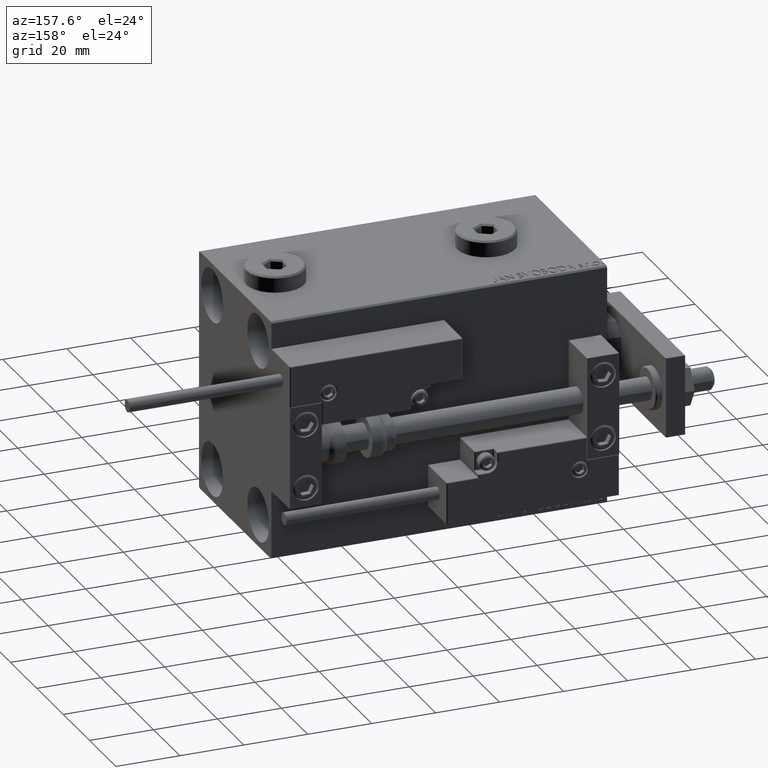
[diagram: clean part render]
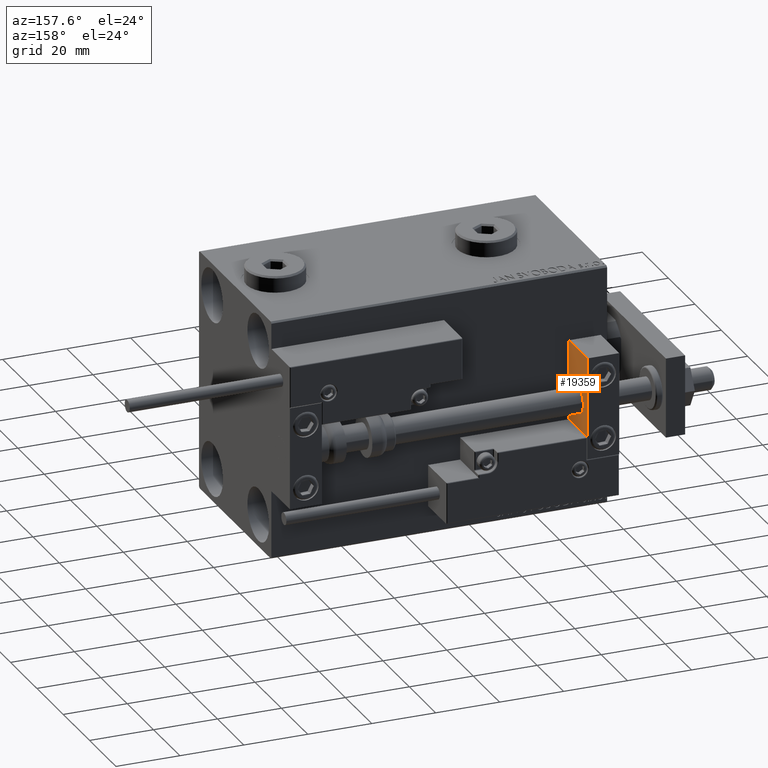
[diagram: same view with one face highlighted and labeled with its STEP entity id]
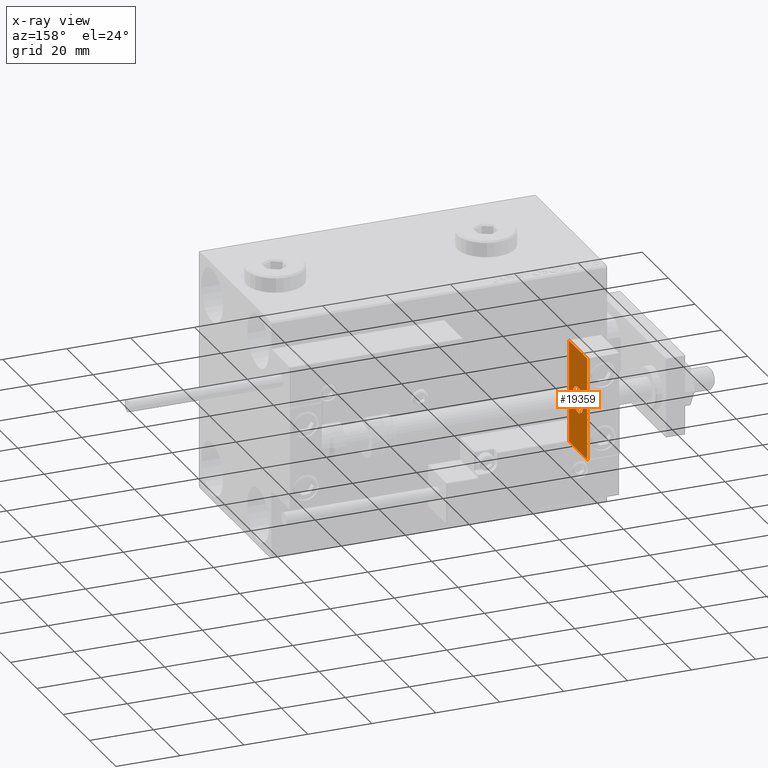
[diagram: x-ray of the same camera — body ghosted, the highlighted face saturated]
A machine part, auxiliary view. The second image highlights one B-rep face of the part: STEP entity #19359.
The next image is the same camera in x-ray: the body ghosted, the highlighted face saturated — about 0% of this face is hidden behind the body in this view.
In plain terms, the highlighted planar face has unit normal (1, 0, -0).
Its self-contained STEP definition (entity closure, byte-faithful):
#1482 = EDGE_LOOP ( 'NONE', ( #19456, #39591, #12392, #4337 ) ) ;
#2294 = EDGE_LOOP ( 'NONE', ( #15353, #41331 ) ) ;
#2794 = CARTESIAN_POINT ( 'NONE',  ( 0.000000000000000000, 7.000000000000000000, -16.00000000000000711 ) ) ;
#4337 = ORIENTED_EDGE ( 'NONE', *, *, #9073, .T. ) ;
#4496 = FACE_OUTER_BOUND ( 'NONE', #1482, .T. ) ;
#5113 = LINE ( 'NONE', #5624, #12181 ) ;
#5523 = CARTESIAN_POINT ( 'NONE',  ( 0.000000000000000000, 0.000000000000000000, 0.000000000000000000 ) ) ;
#5624 = CARTESIAN_POINT ( 'NONE',  ( 0.000000000000000000, 7.000000000000000000, 15.99999999999999289 ) ) ;
#5843 = VECTOR ( 'NONE', #8872, 1000.000000000000000 ) ;
#8091 = AXIS2_PLACEMENT_3D ( 'NONE', #21512, #12915, #34476 ) ;
#8607 = AXIS2_PLACEMENT_3D ( 'NONE', #12932, #28839, #41608 ) ;
#8872 = DIRECTION ( 'NONE',  ( 0.000000000000000000, 0.000000000000000000, -1.000000000000000000 ) ) ;
#8960 = LINE ( 'NONE', #17017, #11264 ) ;
#9073 = EDGE_CURVE ( 'NONE', #34351, #26960, #8960, .T. ) ;
#9176 = DIRECTION ( 'NONE',  ( -0.000000000000000000, 0.000000000000000000, 1.000000000000000000 ) ) ;
#10577 = CIRCLE ( 'NONE', #8091, 4.000000000000000000 ) ;
#10683 = VERTEX_POINT ( 'NONE', #37275 ) ;
#11264 = VECTOR ( 'NONE', #44419, 1000.000000000000000 ) ;
#11939 = VERTEX_POINT ( 'NONE', #28379 ) ;
#12181 = VECTOR ( 'NONE', #24937, 1000.000000000000000 ) ;
#12392 = ORIENTED_EDGE ( 'NONE', *, *, #35281, .T. ) ;
#12915 = DIRECTION ( 'NONE',  ( -1.000000000000000000, -0.000000000000000000, -0.000000000000000000 ) ) ;
#12932 = CARTESIAN_POINT ( 'NONE',  ( 0.000000000000000000, 0.000000000000000000, 0.000000000000000000 ) ) ;
#15353 = ORIENTED_EDGE ( 'NONE', *, *, #28116, .F. ) ;
#15692 = AXIS2_PLACEMENT_3D ( 'NONE', #5523, #21429, #9176 ) ;
#15693 = CARTESIAN_POINT ( 'NONE',  ( 0.000000000000000000, 7.000000000000000000, 15.99999999999999289 ) ) ;
#16981 = FACE_BOUND ( 'NONE', #2294, .T. ) ;
#17017 = CARTESIAN_POINT ( 'NONE',  ( 0.000000000000000000, 7.000000000000000000, -16.00000000000000711 ) ) ;
#17464 = CARTESIAN_POINT ( 'NONE',  ( 0.000000000000000000, -7.000000000000000000, 15.99999999999999289 ) ) ;
#19359 = ADVANCED_FACE ( 'NONE', ( #16981, #4496 ), #28743, .T. ) ;
#19456 = ORIENTED_EDGE ( 'NONE', *, *, #22849, .F. ) ;
#21429 = DIRECTION ( 'NONE',  ( -1.000000000000000000, 0.000000000000000000, -0.000000000000000000 ) ) ;
#21512 = CARTESIAN_POINT ( 'NONE',  ( 0.000000000000000000, 0.000000000000000000, 0.000000000000000000 ) ) ;
#22849 = EDGE_CURVE ( 'NONE', #10683, #26960, #49009, .T. ) ;
#23782 = LINE ( 'NONE', #15693, #25062 ) ;
#24937 = DIRECTION ( 'NONE',  ( 0.000000000000000000, 0.000000000000000000, -1.000000000000000000 ) ) ;
#25062 = VECTOR ( 'NONE', #48518, 1000.000000000000000 ) ;
#26945 = CARTESIAN_POINT ( 'NONE',  ( 0.000000000000000000, 0.000000000000000000, 4.000000000000000000 ) ) ;
#26960 = VERTEX_POINT ( 'NONE', #40630 ) ;
#28116 = EDGE_CURVE ( 'NONE', #51225, #44058, #36830, .T. ) ;
#28379 = CARTESIAN_POINT ( 'NONE',  ( 0.000000000000000000, 7.000000000000000000, 15.99999999999999289 ) ) ;
#28743 = PLANE ( 'NONE',  #15692 ) ;
#28839 = DIRECTION ( 'NONE',  ( -1.000000000000000000, -0.000000000000000000, -0.000000000000000000 ) ) ;
#34351 = VERTEX_POINT ( 'NONE', #2794 ) ;
#34476 = DIRECTION ( 'NONE',  ( 0.000000000000000000, 0.000000000000000000, 1.000000000000000000 ) ) ;
#35281 = EDGE_CURVE ( 'NONE', #11939, #34351, #5113, .T. ) ;
#36830 = CIRCLE ( 'NONE', #8607, 4.000000000000000000 ) ;
#37275 = CARTESIAN_POINT ( 'NONE',  ( 0.000000000000000000, -7.000000000000000000, 15.99999999999999289 ) ) ;
#39591 = ORIENTED_EDGE ( 'NONE', *, *, #48489, .F. ) ;
#40630 = CARTESIAN_POINT ( 'NONE',  ( 0.000000000000000000, -7.000000000000000000, -16.00000000000000711 ) ) ;
#40710 = CARTESIAN_POINT ( 'NONE',  ( 0.000000000000000000, 4.898587196589412829E-16, -4.000000000000000000 ) ) ;
#40753 = EDGE_CURVE ( 'NONE', #44058, #51225, #10577, .T. ) ;
#41331 = ORIENTED_EDGE ( 'NONE', *, *, #40753, .F. ) ;
#41608 = DIRECTION ( 'NONE',  ( 0.000000000000000000, 0.000000000000000000, 1.000000000000000000 ) ) ;
#44058 = VERTEX_POINT ( 'NONE', #40710 ) ;
#44419 = DIRECTION ( 'NONE',  ( 0.000000000000000000, -1.000000000000000000, 0.000000000000000000 ) ) ;
#48489 = EDGE_CURVE ( 'NONE', #11939, #10683, #23782, .T. ) ;
#48518 = DIRECTION ( 'NONE',  ( 0.000000000000000000, -1.000000000000000000, 0.000000000000000000 ) ) ;
#49009 = LINE ( 'NONE', #17464, #5843 ) ;
#51225 = VERTEX_POINT ( 'NONE', #26945 ) ;